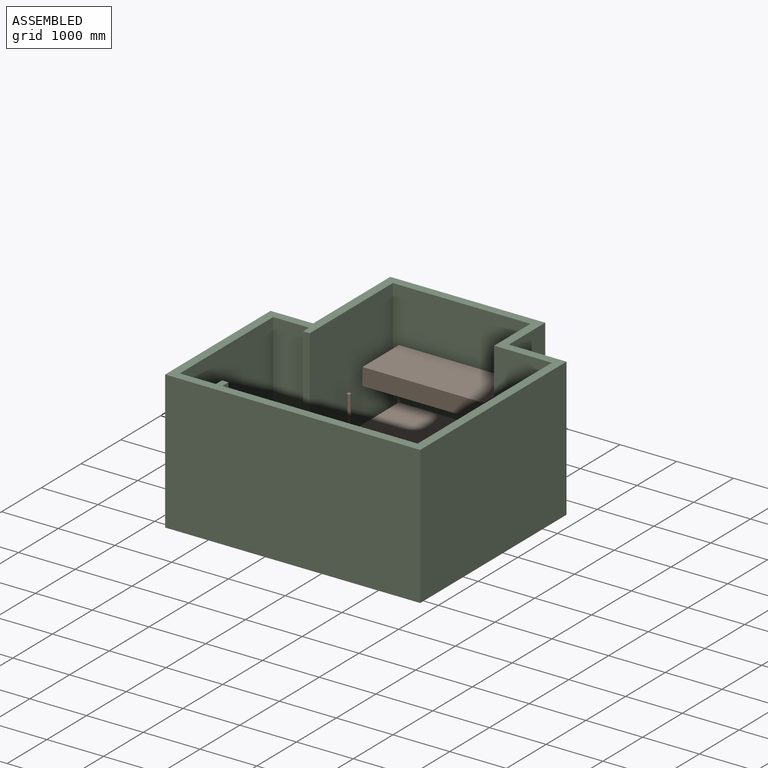
[diagram: assembled view]
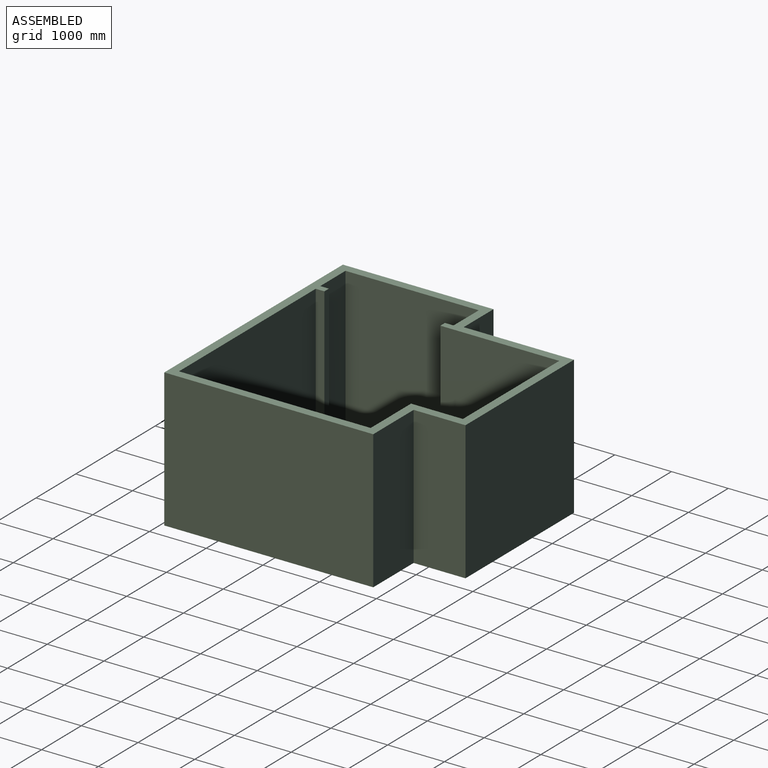
[diagram: assembled view, second angle]
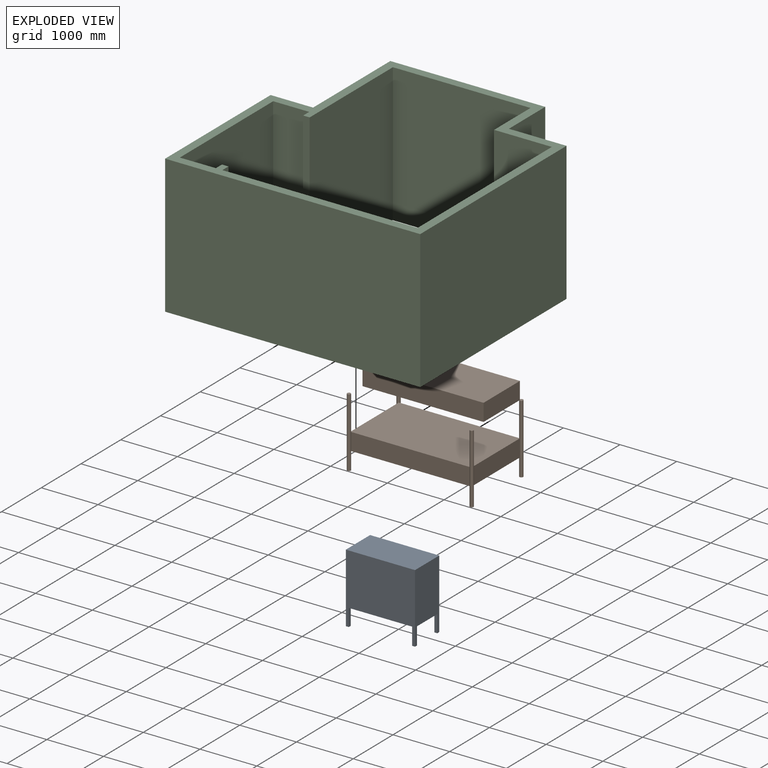
[diagram: exploded view]
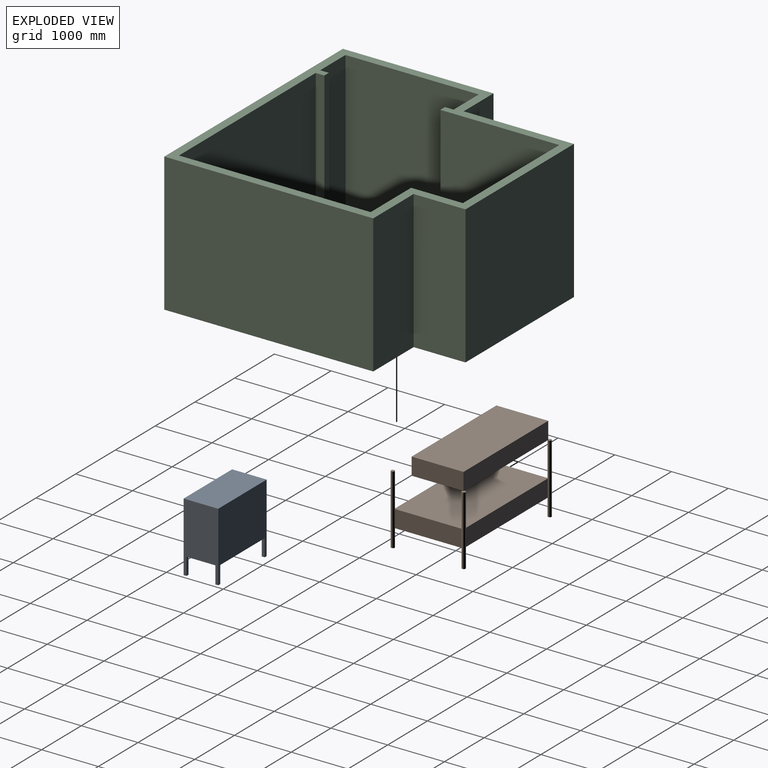
[diagram: exploded view, second angle]
ASSEMBLY  parts=3 mates=2
PART A: 18 faces, bbox 1219.2x609.6x1219.2 mm
  f0: plane 1219.2x1219.2mm, normal (0,1,0), area 1145804.2mm2, adj f1,f3,f4,f5,f13,f14,f16,f17
  f1: plane 1219.2x609.6mm, normal (-1,0,0), area 588385.9mm2, adj f0,f2,f4,f5,f6,f8,f15,f17
  f2: plane 1219.2x1219.2mm, normal (0,-1,0), area 1145804.2mm2, adj f1,f3,f4,f5,f7,f8,f10,f11
  f3: plane 1219.2x609.6mm, normal (1,0,0), area 588385.9mm2, adj f0,f2,f4,f5,f9,f11,f12,f14
  f4: plane 1219.2x609.6mm, normal (0,0,1), area 743224.3mm2, adj f0,f1,f2,f3
  f5: plane 1219.2x609.6mm, normal (0,0,-1), area 732901.8mm2, adj f0,f1,f2,f3,f6,f7,f9,f10
  f6: plane 304.8x50.8mm, normal (0,1,0), area 15483.8mm2, adj f1,f5,f7,f8
  f7: plane 304.8x50.8mm, normal (1,0,0), area 15483.8mm2, adj f2,f5,f6,f8
  f8: plane 50.8x50.8mm, normal (0,0,-1), area 2580.6mm2, adj f1,f2,f6,f7
  f9: plane 304.8x50.8mm, normal (0,1,0), area 15483.8mm2, adj f3,f5,f10,f11
  f10: plane 304.8x50.8mm, normal (-1,0,0), area 15483.8mm2, adj f2,f5,f9,f11
  f11: plane 50.8x50.8mm, normal (0,0,-1), area 2580.6mm2, adj f2,f3,f9,f10
  f12: plane 304.8x50.8mm, normal (0,-1,0), area 15483.8mm2, adj f3,f5,f13,f14
  f13: plane 304.8x50.8mm, normal (-1,0,0), area 15483.8mm2, adj f0,f5,f12,f14
  f14: plane 50.8x50.8mm, normal (0,0,-1), area 2580.6mm2, adj f0,f3,f12,f13
  f15: plane 304.8x50.8mm, normal (0,-1,0), area 15483.8mm2, adj f1,f5,f16,f17
  f16: plane 304.8x50.8mm, normal (1,0,0), area 15483.8mm2, adj f0,f5,f15,f17
  f17: plane 50.8x50.8mm, normal (0,0,-1), area 2580.6mm2, adj f0,f1,f15,f16
PART B: 24 faces, bbox 2227.6x1313.2x1524 mm
  f0: plane 63.5x63.5mm, normal (0,0,1), area 3072.1mm2, adj f8,f19,f20
  f1: plane 63.5x63.5mm, normal (0,0,1), area 3072.1mm2, adj f10,f19,f22
  f2: plane 1193.97x304.8mm, normal (-1,0,0), area 363923.1mm2, adj f6,f7,f8,f15
  f3: plane 2108.37x304.8mm, normal (0,-1,0), area 642632.2mm2, adj f6,f7,f12,f15
  f4: plane 1193.97x304.8mm, normal (1,0,0), area 363923.1mm2, adj f6,f7,f10,f12
  f5: plane 2108.37x304.8mm, normal (0,1,0), area 642632.2mm2, adj f6,f7,f8,f10
  f6: plane 2133.6x1219.2mm, normal (0,0,1), area 2600905.9mm2, adj f2,f3,f4,f5,f8,f10,f12,f15
  f7: plane 2133.6x1219.2mm, normal (0,0,-1), area 2600905.9mm2, adj f2,f3,f4,f5,f8,f10,f12,f15
  f8: cylinder r=31.75mm len=1219.2mm, axis (0,0,1), area 237708.4mm2, adj f0,f2,f5,f6,f7,f9,f18
  f9: plane 63.5x63.5mm, normal (0,0,-1), area 3166.9mm2, adj f8
  f10: cylinder r=31.75mm len=1219.2mm, axis (0,0,1), area 237708.4mm2, adj f1,f4,f5,f6,f7,f11,f18
  f11: plane 63.5x63.5mm, normal (0,0,-1), area 3166.9mm2, adj f10
  f12: cylinder r=31.75mm len=1219.2mm, axis (0,0,1), area 237708.4mm2, adj f3,f4,f6,f7,f13,f14
  f13: plane 63.5x63.5mm, normal (0,0,-1), area 3166.9mm2, adj f12
  f14: plane 63.5x63.5mm, normal (0,0,1), area 3166.9mm2, adj f12
  f15: cylinder r=31.75mm len=1219.2mm, axis (0,0,1), area 237708.4mm2, adj f2,f3,f6,f7,f16,f17
  f16: plane 63.5x63.5mm, normal (0,0,-1), area 3166.9mm2, adj f15
  f17: plane 63.5x63.5mm, normal (0,0,1), area 3166.9mm2, adj f15
  f18: plane 2133.6x914.4mm, normal (0,0,-1), area 1950774.2mm2, adj f8,f10,f19,f20,f21,f22
  f19: plane 2133.6x304.8mm, normal (0,1,0), area 650321.3mm2, adj f0,f1,f18,f20,f22,f23
  f20: plane 914.4x304.8mm, normal (-1,0,0), area 278709.1mm2, adj f0,f18,f19,f21,f23
  f21: plane 2133.6x304.8mm, normal (0,-1,0), area 650321.3mm2, adj f18,f20,f22,f23
  f22: plane 914.4x304.8mm, normal (1,0,0), area 278709.1mm2, adj f1,f18,f19,f21,f23
  f23: plane 2133.6x914.4mm, normal (0,0,1), area 1950963.8mm2, adj f19,f20,f21,f22
PART C: 24 faces, bbox 4495.8x4597.4x2438.4 mm
  f0: plane 2438.4x2095.5mm, normal (1,0,0), area 5109667.2mm2, adj f1,f21,f22,f23
  f1: plane 2438.4x2425.7mm, normal (0,-1,0), area 5914826.9mm2, adj f0,f2,f22,f23
  f2: plane 2438.4x914.4mm, normal (-1,0,0), area 2229673mm2, adj f1,f3,f22,f23
  f3: plane 2438.4x1016mm, normal (0,-1,0), area 2477414.4mm2, adj f2,f4,f22,f23
  f4: plane 3378.2x2438.4mm, normal (-1,0,0), area 8237402.9mm2, adj f3,f5,f22,f23
  f5: plane 3441.7x2438.4mm, normal (0,1,0), area 8392241.3mm2, adj f4,f6,f22,f23
  f6: plane 2438.4x152.4mm, normal (1,0,0), area 371612.2mm2, adj f5,f7,f22,f23
  f7: plane 2438.4x114.3mm, normal (0,1,0), area 278709.1mm2, adj f6,f8,f22,f23
  f8: plane 2438.4x152.4mm, normal (-1,0,0), area 371612.2mm2, adj f7,f9,f22,f23
  f9: plane 2438.4x635mm, normal (0,1,0), area 1548384mm2, adj f8,f10,f22,f23
  f10: plane 2438.4x2349.5mm, normal (1,0,0), area 5729020.8mm2, adj f9,f11,f22,f23
  f11: plane 2438.4x635mm, normal (0,-1,0), area 1548384mm2, adj f10,f12,f22,f23
  f12: plane 2438.4x152.4mm, normal (-1,0,0), area 371612.2mm2, adj f11,f21,f22,f23
  f13: plane 2438.4x914.4mm, normal (1,0,0), area 2229673mm2, adj f14,f20,f22,f23
  f14: plane 2730.5x2438.4mm, normal (0,1,0), area 6658051.2mm2, adj f13,f15,f22,f23
  f15: plane 2438.4x1943.1mm, normal (-1,0,0), area 4738055mm2, adj f14,f16,f22,f23
  f16: plane 2438.4x749.3mm, normal (0,1,0), area 1827093.1mm2, adj f15,f17,f22,f23
  f17: plane 2654.3x2438.4mm, normal (-1,0,0), area 6472245.1mm2, adj f16,f18,f22,f23
  f18: plane 4495.8x2438.4mm, normal (0,-1,0), area 10962558.7mm2, adj f17,f19,f22,f23
  f19: plane 3683x2438.4mm, normal (1,0,0), area 8980627.2mm2, adj f18,f20,f22,f23
  f20: plane 2438.4x1016mm, normal (0,1,0), area 2477414.4mm2, adj f13,f19,f22,f23
  f21: plane 2438.4x114.3mm, normal (0,-1,0), area 278709.1mm2, adj f0,f12,f22,f23
  f22: plane 4597.4x4495.8mm, normal (0,0,1), area 2713543mm2, adj f0,f1,f2,f3,f4,f5,f6,f7
  f23: plane 4597.4x4495.8mm, normal (0,0,-1), area 2713543mm2, adj f0,f1,f2,f3,f4,f5,f6,f7
PLACE A t=(-43.55,-3310.08,304.8)mm
PLACE B t=(620.62,127.06,304.8)mm
PLACE C at identity
MATE planar B.f8 <-> C.f23  axis (0,0,-1) through (-3295.48,848.98,0)mm
MATE planar A.f14 <-> C.f23  axis (0,0,-1) through (-94.63,-2760.19,0)mm
